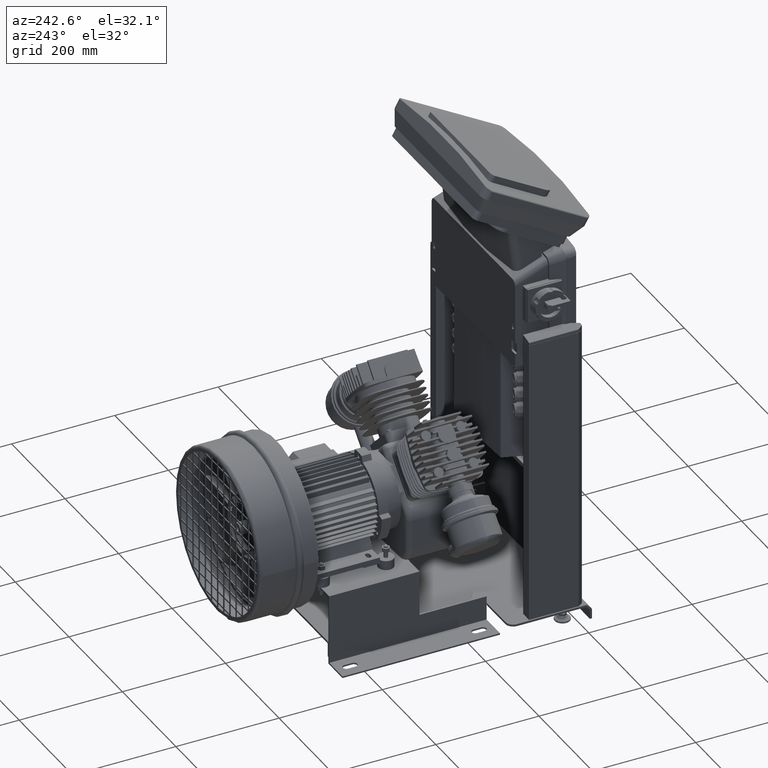
[diagram: clean part render]
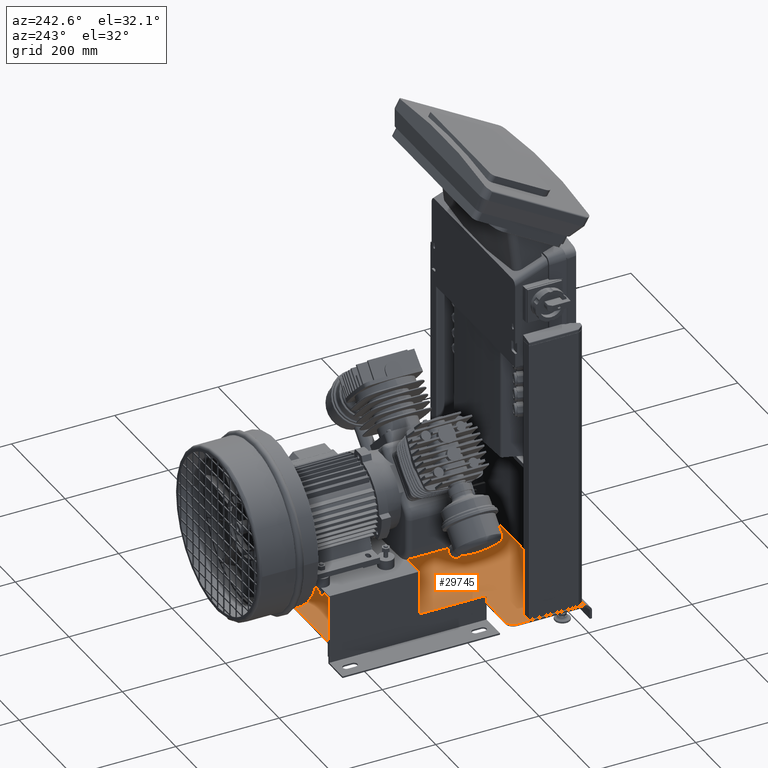
[diagram: same view with one face highlighted and labeled with its STEP entity id]
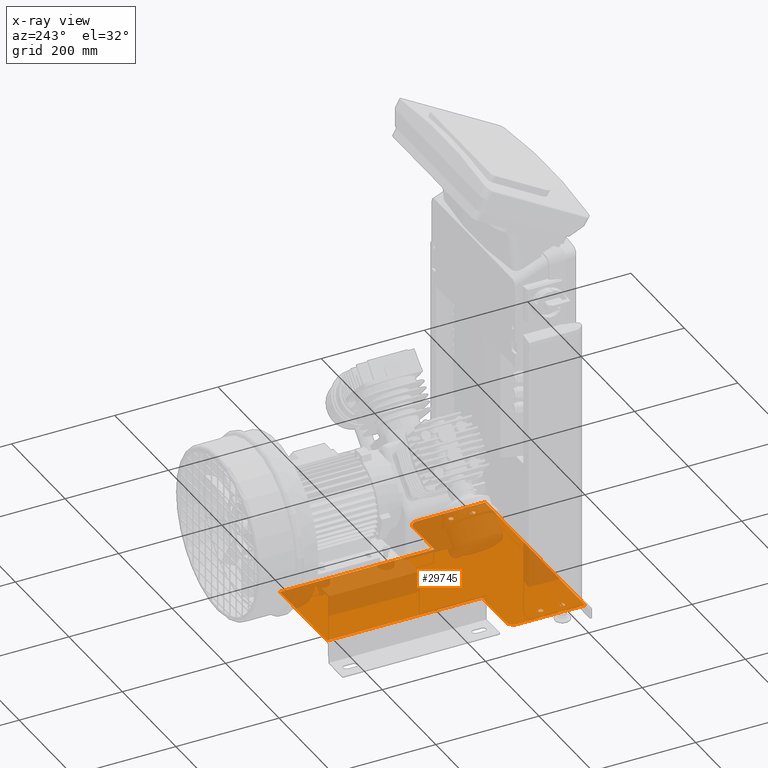
[diagram: x-ray of the same camera — body ghosted, the highlighted face saturated]
A machine part, auxiliary view. The second image highlights one B-rep face of the part: STEP entity #29745.
The next image is the same camera in x-ray: the body ghosted, the highlighted face saturated — about 42% of this face is hidden behind the body in this view.
In plain terms, the highlighted face is a freeform B-spline surface patch.
Its self-contained STEP definition (entity closure, byte-faithful):
#29397=CARTESIAN_POINT('',(-163.55087847100015,74.15224273549984,4.0));
#29398=VERTEX_POINT('',#29397);
#29407=CARTESIAN_POINT('',(-171.44912152850679,78.46707258291876,4.0));
#29408=VERTEX_POINT('',#29407);
#29409=CARTESIAN_POINT('',(-167.50000000000011,76.309657659199843,4.0));
#29410=DIRECTION('',(0.0,0.0,1.0));
#29411=DIRECTION('',(0.877582561890373,-0.479425538604204,0.0));
#29412=AXIS2_PLACEMENT_3D('',#29409,#29410,#29411);
#29413=CIRCLE('',#29412,4.5);
#29414=EDGE_CURVE('',#29398,#29408,#29413,.T.);
#29439=CARTESIAN_POINT('',(-163.55087847149343,32.152242735480925,4.0));
#29440=VERTEX_POINT('',#29439);
#29449=CARTESIAN_POINT('',(-171.44912152900019,36.46707258299989,4.0));
#29450=VERTEX_POINT('',#29449);
#29451=CARTESIAN_POINT('',(-167.50000000000011,34.309657659199843,4.0));
#29452=DIRECTION('',(0.0,0.0,1.0));
#29453=DIRECTION('',(0.877582561890373,-0.479425538604204,0.0));
#29454=AXIS2_PLACEMENT_3D('',#29451,#29452,#29453);
#29455=CIRCLE('',#29454,4.5);
#29456=EDGE_CURVE('',#29440,#29450,#29455,.T.);
#29481=CARTESIAN_POINT('',(171.44912152899997,32.15224273549984,4.0));
#29482=VERTEX_POINT('',#29481);
#29491=CARTESIAN_POINT('',(163.55087847149332,36.46707258291876,4.0));
#29492=VERTEX_POINT('',#29491);
#29493=CARTESIAN_POINT('',(167.5,34.309657659199843,4.0));
#29494=DIRECTION('',(0.0,0.0,1.0));
#29495=DIRECTION('',(0.877582561890373,-0.479425538604204,0.0));
#29496=AXIS2_PLACEMENT_3D('',#29493,#29494,#29495);
#29497=CIRCLE('',#29496,4.5);
#29498=EDGE_CURVE('',#29482,#29492,#29497,.T.);
#29523=CARTESIAN_POINT('',(171.44912152899997,74.15224273549984,4.0));
#29524=VERTEX_POINT('',#29523);
#29533=CARTESIAN_POINT('',(163.55087847149332,78.46707258291876,4.0));
#29534=VERTEX_POINT('',#29533);
#29535=CARTESIAN_POINT('',(167.5,76.309657659199843,4.0));
#29536=DIRECTION('',(0.0,0.0,1.0));
#29537=DIRECTION('',(0.877582561890373,-0.479425538604204,0.0));
#29538=AXIS2_PLACEMENT_3D('',#29535,#29536,#29537);
#29539=CIRCLE('',#29538,4.5);
#29540=EDGE_CURVE('',#29524,#29534,#29539,.T.);
#29576=CARTESIAN_POINT('',(172.5,147.30965765899998,4.0));
#29577=VERTEX_POINT('',#29576);
#29584=CARTESIAN_POINT('',(187.5,132.30965765899987,4.0));
#29585=VERTEX_POINT('',#29584);
#29586=CARTESIAN_POINT('',(172.5,132.30965765899987,4.0));
#29587=DIRECTION('',(0.0,0.0,-1.0));
#29588=DIRECTION('',(0.707106781186547,0.707106781186547,0.0));
#29589=AXIS2_PLACEMENT_3D('',#29586,#29587,#29588);
#29590=CIRCLE('',#29589,14.999999999999996);
#29591=EDGE_CURVE('',#29577,#29585,#29590,.T.);
#29608=CARTESIAN_POINT('',(187.5,-1.136868E-013,4.0));
#29609=VERTEX_POINT('',#29608);
#29610=CARTESIAN_POINT('',(187.5,-1.048051E-013,4.0));
#29611=DIRECTION('',(0.0,1.0,0.0));
#29612=VECTOR('',#29611,132.30965765899998);
#29613=LINE('',#29610,#29612);
#29614=EDGE_CURVE('',#29609,#29585,#29613,.T.);
#29633=CARTESIAN_POINT('',(187.5,447.30965765899987,4.0));
#29634=CARTESIAN_POINT('',(-187.50000000000011,447.30965765899987,4.0));
#29635=CARTESIAN_POINT('',(187.5,-1.136868E-013,4.0));
#29636=CARTESIAN_POINT('',(-187.50000000000011,-1.136868E-013,4.0));
#29637=B_SPLINE_SURFACE_WITH_KNOTS('',1,1,((#29633,#29635),(#29634,#29636)),.UNSPECIFIED.,.F.,.F.,.U.,(2,2),(2,2),(0.0,375.00000000000011),(0.0,447.30965765899998),.UNSPECIFIED.);
#29638=ORIENTED_EDGE('',*,*,#29591,.F.);
#29639=CARTESIAN_POINT('',(92.438221149030937,147.30965765899998,4.0));
#29640=VERTEX_POINT('',#29639);
#29641=CARTESIAN_POINT('',(92.438221149030937,147.30965765899998,4.0));
#29642=DIRECTION('',(1.0,0.0,0.0));
#29643=VECTOR('',#29642,80.061778850969063);
#29644=LINE('',#29641,#29643);
#29645=EDGE_CURVE('',#29640,#29577,#29644,.T.);
#29646=ORIENTED_EDGE('',*,*,#29645,.F.);
#29647=CARTESIAN_POINT('',(92.438221149030937,447.30965765899987,4.0));
#29648=VERTEX_POINT('',#29647);
#29649=CARTESIAN_POINT('',(92.438221149030937,147.30965765899998,4.0));
#29650=DIRECTION('',(0.0,1.0,0.0));
#29651=VECTOR('',#29650,299.99999999999989);
#29652=LINE('',#29649,#29651);
#29653=EDGE_CURVE('',#29648,#29640,#29652,.F.);
#29654=ORIENTED_EDGE('',*,*,#29653,.F.);
#29655=CARTESIAN_POINT('',(-84.561778850969063,447.30965765899987,4.0));
#29656=VERTEX_POINT('',#29655);
#29657=CARTESIAN_POINT('',(-84.561778850969063,447.30965765899975,4.0));
#29658=DIRECTION('',(1.0,0.0,0.0));
#29659=VECTOR('',#29658,177.0);
#29660=LINE('',#29657,#29659);
#29661=EDGE_CURVE('',#29656,#29648,#29660,.T.);
#29662=ORIENTED_EDGE('',*,*,#29661,.F.);
#29663=CARTESIAN_POINT('',(-84.561778850969063,147.30965765899998,4.0));
#29664=VERTEX_POINT('',#29663);
#29665=CARTESIAN_POINT('',(-84.561778850969063,147.30965765899998,4.0));
#29666=DIRECTION('',(0.0,1.0,0.0));
#29667=VECTOR('',#29666,299.99999999999989);
#29668=LINE('',#29665,#29667);
#29669=EDGE_CURVE('',#29656,#29664,#29668,.F.);
#29670=ORIENTED_EDGE('',*,*,#29669,.T.);
#29671=CARTESIAN_POINT('',(-172.50000000000011,147.30965765899998,4.0));
#29672=VERTEX_POINT('',#29671);
#29673=CARTESIAN_POINT('',(-172.50000000000011,147.30965765899998,4.0));
#29674=DIRECTION('',(1.0,0.0,0.0));
#29675=VECTOR('',#29674,87.938221149031051);
#29676=LINE('',#29673,#29675);
#29677=EDGE_CURVE('',#29672,#29664,#29676,.T.);
#29678=ORIENTED_EDGE('',*,*,#29677,.F.);
#29679=CARTESIAN_POINT('',(-187.50000000000011,132.30965765899987,4.0));
#29680=VERTEX_POINT('',#29679);
#29681=CARTESIAN_POINT('',(-172.50000000000011,132.30965765899987,4.0));
#29682=DIRECTION('',(0.0,0.0,-1.0));
#29683=DIRECTION('',(-0.707106781186547,0.707106781186547,0.0));
#29684=AXIS2_PLACEMENT_3D('',#29681,#29682,#29683);
#29685=CIRCLE('',#29684,14.999999999999996);
#29686=EDGE_CURVE('',#29680,#29672,#29685,.T.);
#29687=ORIENTED_EDGE('',*,*,#29686,.F.);
#29688=CARTESIAN_POINT('',(-187.50000000000011,-1.136868E-013,4.0));
#29689=VERTEX_POINT('',#29688);
#29690=CARTESIAN_POINT('',(-187.50000000000011,-8.526513E-014,4.0));
#29691=DIRECTION('',(0.0,1.0,0.0));
#29692=VECTOR('',#29691,132.30965765899995);
#29693=LINE('',#29690,#29692);
#29694=EDGE_CURVE('',#29680,#29689,#29693,.F.);
#29695=ORIENTED_EDGE('',*,*,#29694,.T.);
#29696=CARTESIAN_POINT('',(-187.50000000000011,-1.136868E-013,4.0));
#29697=DIRECTION('',(1.0,0.0,0.0));
#29698=VECTOR('',#29697,375.0);
#29699=LINE('',#29696,#29698);
#29700=EDGE_CURVE('',#29609,#29689,#29699,.F.);
#29701=ORIENTED_EDGE('',*,*,#29700,.F.);
#29702=ORIENTED_EDGE('',*,*,#29614,.T.);
#29703=EDGE_LOOP('',(#29638,#29646,#29654,#29662,#29670,#29678,#29687,#29695,#29701,#29702));
#29704=FACE_OUTER_BOUND('',#29703,.T.);
#29705=ORIENTED_EDGE('',*,*,#29498,.F.);
#29706=CARTESIAN_POINT('',(167.5,34.309657659199843,4.0));
#29707=DIRECTION('',(0.0,0.0,1.0));
#29708=DIRECTION('',(0.877582561890373,-0.479425538604204,0.0));
#29709=AXIS2_PLACEMENT_3D('',#29706,#29707,#29708);
#29710=CIRCLE('',#29709,4.5);
#29711=EDGE_CURVE('',#29492,#29482,#29710,.T.);
#29712=ORIENTED_EDGE('',*,*,#29711,.F.);
#29713=EDGE_LOOP('',(#29705,#29712));
#29714=FACE_BOUND('',#29713,.T.);
#29715=ORIENTED_EDGE('',*,*,#29540,.F.);
#29716=CARTESIAN_POINT('',(167.5,76.309657659199843,4.0));
#29717=DIRECTION('',(0.0,0.0,1.0));
#29718=DIRECTION('',(0.877582561890373,-0.479425538604204,0.0));
#29719=AXIS2_PLACEMENT_3D('',#29716,#29717,#29718);
#29720=CIRCLE('',#29719,4.5);
#29721=EDGE_CURVE('',#29534,#29524,#29720,.T.);
#29722=ORIENTED_EDGE('',*,*,#29721,.F.);
#29723=EDGE_LOOP('',(#29715,#29722));
#29724=FACE_BOUND('',#29723,.T.);
#29725=ORIENTED_EDGE('',*,*,#29414,.F.);
#29726=CARTESIAN_POINT('',(-167.50000000000011,76.309657659199843,4.0));
#29727=DIRECTION('',(0.0,0.0,1.0));
#29728=DIRECTION('',(0.877582561890373,-0.479425538604204,0.0));
#29729=AXIS2_PLACEMENT_3D('',#29726,#29727,#29728);
#29730=CIRCLE('',#29729,4.5);
#29731=EDGE_CURVE('',#29408,#29398,#29730,.T.);
#29732=ORIENTED_EDGE('',*,*,#29731,.F.);
#29733=EDGE_LOOP('',(#29725,#29732));
#29734=FACE_BOUND('',#29733,.T.);
#29735=CARTESIAN_POINT('',(-167.50000000000011,34.309657659199843,4.0));
#29736=DIRECTION('',(0.0,0.0,1.0));
#29737=DIRECTION('',(0.877582561890373,-0.479425538604204,0.0));
#29738=AXIS2_PLACEMENT_3D('',#29735,#29736,#29737);
#29739=CIRCLE('',#29738,4.5);
#29740=EDGE_CURVE('',#29450,#29440,#29739,.T.);
#29741=ORIENTED_EDGE('',*,*,#29740,.F.);
#29742=ORIENTED_EDGE('',*,*,#29456,.F.);
#29743=EDGE_LOOP('',(#29741,#29742));
#29744=FACE_BOUND('',#29743,.T.);
#29745=ADVANCED_FACE('',(#29704,#29714,#29724,#29734,#29744),#29637,.T.);